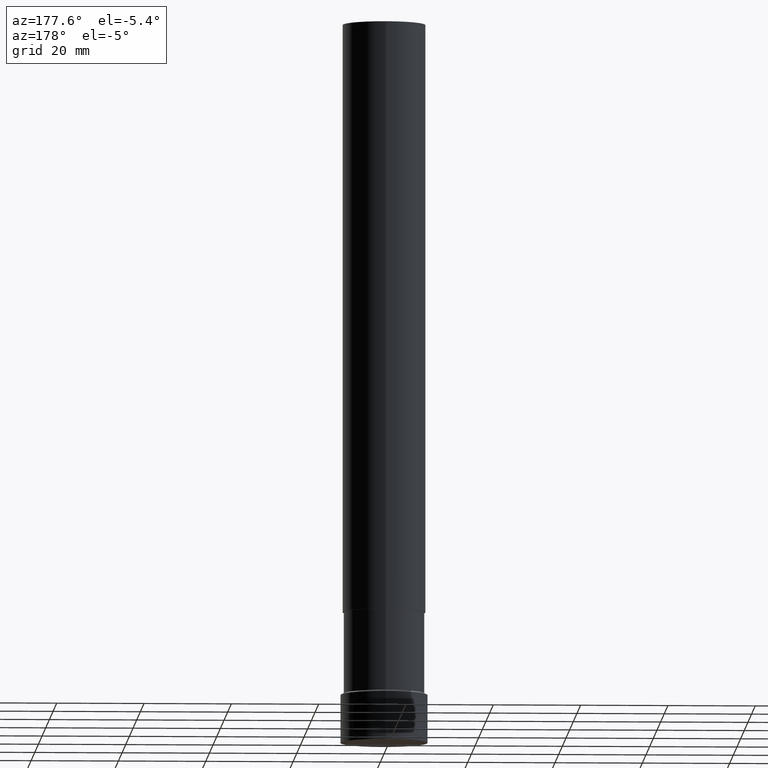
[diagram: clean part render]
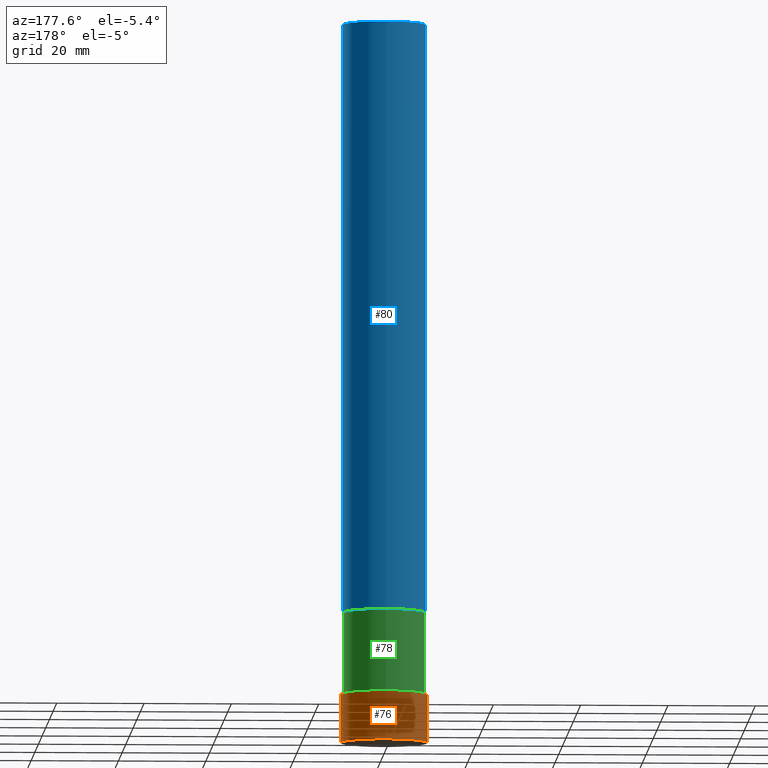
[diagram: same view with three faces highlighted in distinct colors, each labeled with its STEP entity id]
A machine part, auxiliary view with three faces highlighted in distinct colors.
Their STEP definitions:

[orange] entity #76 — the highlighted cylindrical surface (bore or boss wall) has radius 10 mm, axis along (0, 0, -1).
#76=ADVANCED_FACE('',(#85,#86),#87,.T.);
#85=FACE_BOUND('',#104,.T.);
#86=FACE_BOUND('',#105,.T.);
#87=CYLINDRICAL_SURFACE('',#106,10.0);
#104=EDGE_LOOP('',(#125));
#105=EDGE_LOOP('',(#126));
#106=AXIS2_PLACEMENT_3D('',#127,#128,#129);
#125=ORIENTED_EDGE('',*,*,#155,.F.);
#126=ORIENTED_EDGE('',*,*,#154,.T.);
#127=CARTESIAN_POINT('',(-3.3706285819351E-016,-3.47757080987126E-015,5.50465421423038));
#128=DIRECTION('',(6.12323399573677E-017,6.31751000976799E-016,-1.0));
#129=DIRECTION('',(-4.35107447909871E-032,1.0,6.31751000976799E-016));
#154=EDGE_CURVE('',#160,#160,#161,.T.);
#155=EDGE_CURVE('',#162,#162,#163,.T.);
#160=VERTEX_POINT('',#172);
#161=CIRCLE('',#173,10.0000000000001);
#162=VERTEX_POINT('',#174);
#163=CIRCLE('',#175,9.99999999999999);
#172=CARTESIAN_POINT('',(0.0,10.0000000000001,0.0));
#173=AXIS2_PLACEMENT_3D('',#184,#185,#186);
#174=CARTESIAN_POINT('',(-6.74125716387022E-016,9.99999999999999,11.0093084284608));
#175=AXIS2_PLACEMENT_3D('',#187,#188,#189);
#184=CARTESIAN_POINT('',(0.0,0.0,0.0));
#185=DIRECTION('',(-6.12323399573677E-017,-6.31751000976796E-016,1.0));
#186=DIRECTION('',(-4.35107447909869E-032,1.0,6.31751000976796E-016));
#187=CARTESIAN_POINT('',(-6.74125716387022E-016,-6.95514161974251E-015,11.0093084284608));
#188=DIRECTION('',(-6.12323399573676E-017,-6.31751000976802E-016,1.0));
#189=DIRECTION('',(-4.35107447909873E-032,1.0,6.31751000976802E-016));

[blue] entity #80 — the highlighted cylindrical surface (bore or boss wall) has radius 9.5 mm, axis along (0, 0, -1).
#80=ADVANCED_FACE('',(#97,#98),#99,.T.);
#97=FACE_BOUND('',#116,.T.);
#98=FACE_BOUND('',#117,.T.);
#99=CYLINDRICAL_SURFACE('',#118,9.50000000000091);
#116=EDGE_LOOP('',(#145));
#117=EDGE_LOOP('',(#146));
#118=AXIS2_PLACEMENT_3D('',#147,#148,#149);
#145=ORIENTED_EDGE('',*,*,#159,.F.);
#146=ORIENTED_EDGE('',*,*,#158,.T.);
#147=CARTESIAN_POINT('',(-5.97015314584353E-015,-6.15957225952408E-014,97.5000000000029));
#148=DIRECTION('',(6.12323399573676E-017,6.31751000976817E-016,-1.0));
#149=DIRECTION('',(-4.3510744790988E-032,1.0,6.31751000976817E-016));
#158=EDGE_CURVE('',#168,#168,#169,.T.);
#159=EDGE_CURVE('',#170,#170,#171,.T.);
#168=VERTEX_POINT('',#180);
#169=CIRCLE('',#181,9.50000000000201);
#170=VERTEX_POINT('',#182);
#171=CIRCLE('',#183,9.49999999999982);
#180=CARTESIAN_POINT('',(-1.83697019872123E-015,9.50000000000199,30.0000000000032));
#181=AXIS2_PLACEMENT_3D('',#196,#197,#198);
#182=CARTESIAN_POINT('',(-1.01033360929658E-014,9.49999999999972,165.000000000003));
#183=AXIS2_PLACEMENT_3D('',#199,#200,#201);
#196=CARTESIAN_POINT('',(-1.83697019872123E-015,-1.89525300293063E-014,30.0000000000032));
#197=DIRECTION('',(-6.12323399573677E-017,-6.3175100097683E-016,1.0));
#198=DIRECTION('',(-4.35107447909924E-032,1.0,6.3175100097683E-016));
#199=CARTESIAN_POINT('',(-1.01033360929658E-014,-1.04238915161175E-013,165.000000000003));
#200=DIRECTION('',(-6.12323399573677E-017,-6.31751000976805E-016,1.0));
#201=DIRECTION('',(-4.35107447909883E-032,1.0,6.31751000976805E-016));

[green] entity #78 — the highlighted cylindrical surface (bore or boss wall) has radius 9.25 mm, axis along (0, 0, -1).
#78=ADVANCED_FACE('',(#91,#92),#93,.T.);
#91=FACE_BOUND('',#110,.T.);
#92=FACE_BOUND('',#111,.T.);
#93=CYLINDRICAL_SURFACE('',#112,9.25000000000078);
#110=EDGE_LOOP('',(#135));
#111=EDGE_LOOP('',(#136));
#112=AXIS2_PLACEMENT_3D('',#137,#138,#139);
#135=ORIENTED_EDGE('',*,*,#157,.F.);
#136=ORIENTED_EDGE('',*,*,#156,.T.);
#137=CARTESIAN_POINT('',(-1.26665270933515E-015,-1.30684066225398E-014,20.6860085735258));
#138=DIRECTION('',(6.12323399573676E-017,6.31751000976822E-016,-1.0));
#139=DIRECTION('',(-4.35107447909912E-032,1.0,6.31751000976822E-016));
#156=EDGE_CURVE('',#164,#164,#165,.T.);
#157=EDGE_CURVE('',#166,#166,#167,.T.);
#164=VERTEX_POINT('',#176);
#165=CIRCLE('',#177,9.25000000000226);
#166=VERTEX_POINT('',#178);
#167=CIRCLE('',#179,9.2499999999993);
#176=CARTESIAN_POINT('',(-6.963352199488E-016,9.25000000000225,11.3720171470438));
#177=AXIS2_PLACEMENT_3D('',#190,#191,#192);
#178=CARTESIAN_POINT('',(-1.8369701987215E-015,9.24999999999928,30.0000000000077));
#179=AXIS2_PLACEMENT_3D('',#193,#194,#195);
#190=CARTESIAN_POINT('',(-6.963352199488E-016,-7.18428321577036E-015,11.3720171470438));
#191=DIRECTION('',(-6.12323399573676E-017,-6.31751000976809E-016,1.0));
#192=DIRECTION('',(-4.35107447909891E-032,1.0,6.31751000976809E-016));
#193=CARTESIAN_POINT('',(-1.8369701987215E-015,-1.89525300293091E-014,30.0000000000077));
#194=DIRECTION('',(-6.12323399573677E-017,-6.31751000976836E-016,1.0));
#195=DIRECTION('',(-4.35107447909885E-032,1.0,6.31751000976836E-016));